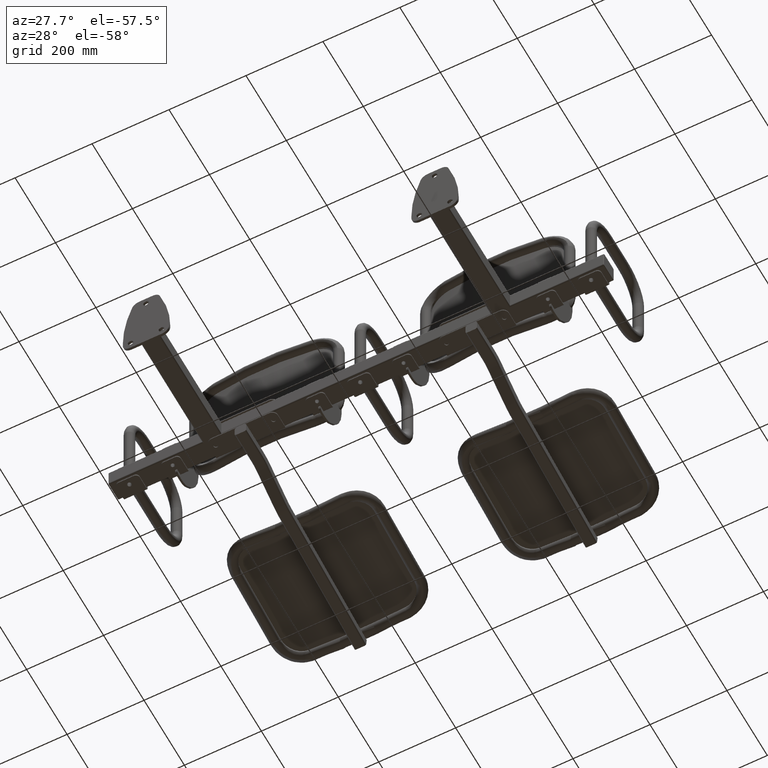
[diagram: clean part render]
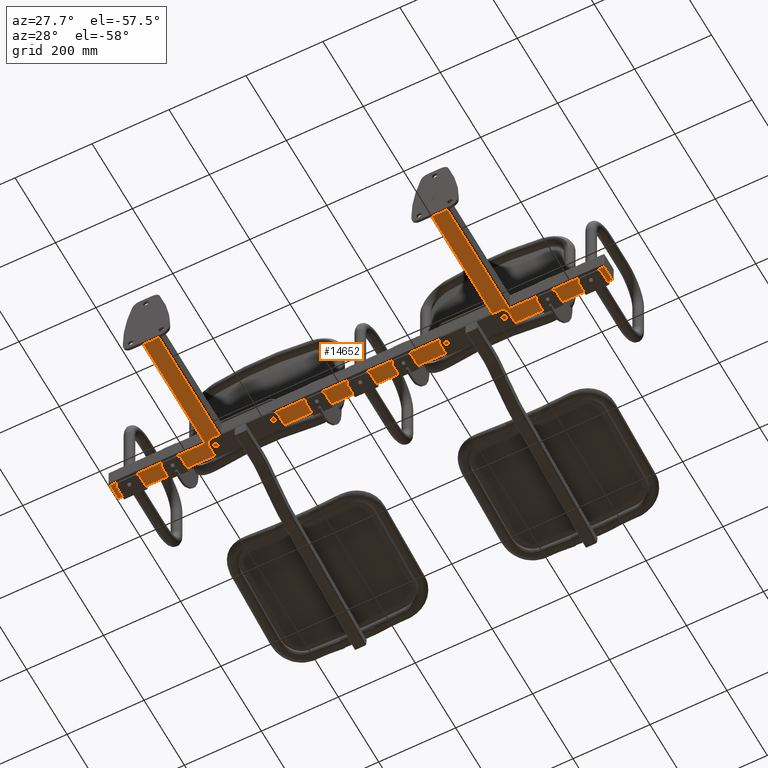
[diagram: same view with one face highlighted and labeled with its STEP entity id]
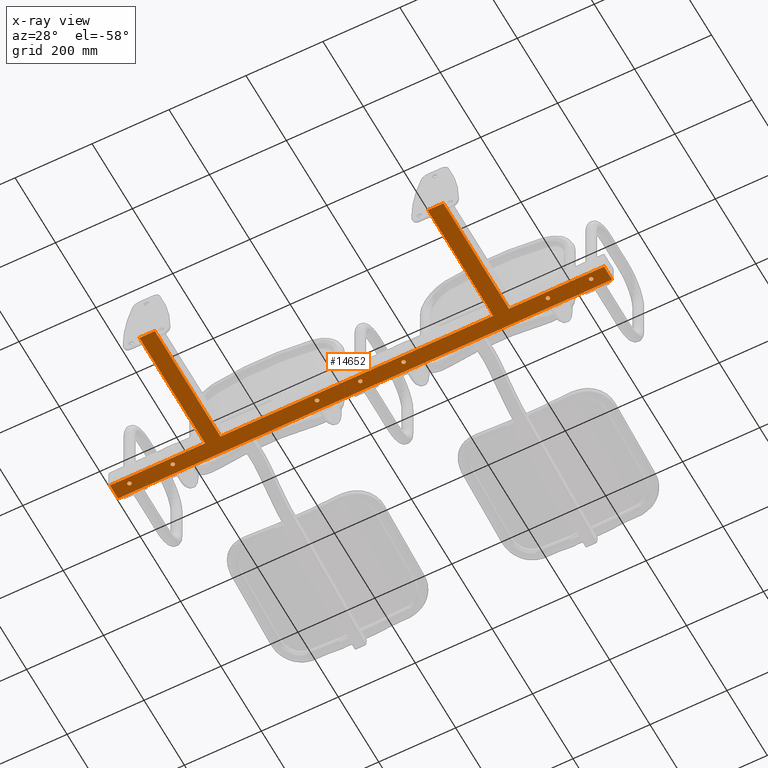
[diagram: x-ray of the same camera — body ghosted, the highlighted face saturated]
A machine part, auxiliary view. The second image highlights one B-rep face of the part: STEP entity #14652.
The next image is the same camera in x-ray: the body ghosted, the highlighted face saturated — about 0% of this face is hidden behind the body in this view.
In plain terms, the highlighted planar face has unit normal (0, 0, -1).
Its self-contained STEP definition (entity closure, byte-faithful):
#572 = CARTESIAN_POINT ( 'NONE',  ( -482.2500000000001700, 347.0000000000000000, -25.00000000000000000 ) ) ;
#574 = CARTESIAN_POINT ( 'NONE',  ( -594.7500000000000000, 347.0000000000000600, -25.00000000000000000 ) ) ;
#578 = CARTESIAN_POINT ( 'NONE',  ( -395.0000000000000600, 331.0000000000000000, -25.00000000000000000 ) ) ;
#581 = CARTESIAN_POINT ( 'NONE',  ( 642.0000000000000000, 371.0000000000000000, -25.00000000000000000 ) ) ;
#584 = CARTESIAN_POINT ( 'NONE',  ( 482.2500000000001700, 347.0000000000000000, -25.00000000000000000 ) ) ;
#588 = CARTESIAN_POINT ( 'NONE',  ( 107.2500000000001600, 347.0000000000000000, -25.00000000000000000 ) ) ;
#591 = CARTESIAN_POINT ( 'NONE',  ( -355.0000000000000000, 6.000000000000000000, -25.00000000000000000 ) ) ;
#592 = CARTESIAN_POINT ( 'NONE',  ( 395.0000000000000000, 6.000000000000000000, -25.00000000000000000 ) ) ;
#597 = CARTESIAN_POINT ( 'NONE',  ( -117.7500000000001600, 347.0000000000000000, -25.00000000000000000 ) ) ;
#600 = CARTESIAN_POINT ( 'NONE',  ( 642.0000000000001100, 331.0000000000000000, -25.00000000000000000 ) ) ;
#610 = CARTESIAN_POINT ( 'NONE',  ( -107.2500000000001600, 347.0000000000000000, -25.00000000000000000 ) ) ;
#617 = CARTESIAN_POINT ( 'NONE',  ( 395.0000000000000600, 331.0000000000000000, -25.00000000000000000 ) ) ;
#626 = CARTESIAN_POINT ( 'NONE',  ( -642.0000000000001100, 371.0000000000000000, -25.00000000000000000 ) ) ;
#631 = CARTESIAN_POINT ( 'NONE',  ( 117.7500000000001600, 347.0000000000000000, -25.00000000000000000 ) ) ;
#636 = CARTESIAN_POINT ( 'NONE',  ( 355.0000000000000000, 6.000000000000000000, -25.00000000000000000 ) ) ;
#638 = CARTESIAN_POINT ( 'NONE',  ( -492.7500000000001100, 347.0000000000000000, -25.00000000000000000 ) ) ;
#642 = CARTESIAN_POINT ( 'NONE',  ( 492.7500000000001100, 347.0000000000000000, -25.00000000000000000 ) ) ;
#647 = CARTESIAN_POINT ( 'NONE',  ( -395.0000000000000000, 6.000000000000000000, -25.00000000000000000 ) ) ;
#2231 = VERTEX_POINT ( 'NONE', #8940 ) ;
#2252 = VERTEX_POINT ( 'NONE', #8961 ) ;
#2265 = VERTEX_POINT ( 'NONE', #12576 ) ;
#3215 = AXIS2_PLACEMENT_3D ( 'NONE', #14291, #14292, #14293 ) ;
#3216 = AXIS2_PLACEMENT_3D ( 'NONE', #14294, #14295, #14296 ) ;
#3217 = AXIS2_PLACEMENT_3D ( 'NONE', #14299, #14300, #14301 ) ;
#3218 = AXIS2_PLACEMENT_3D ( 'NONE', #14304, #14305, #14306 ) ;
#3253 = EDGE_CURVE ( 'NONE', #3374, #16847, #4338, .T. ) ;
#3353 = VERTEX_POINT ( 'NONE', #16104 ) ;
#3374 = VERTEX_POINT ( 'NONE', #12045 ) ;
#3375 = VERTEX_POINT ( 'NONE', #12046 ) ;
#3378 = VERTEX_POINT ( 'NONE', #12049 ) ;
#4338 = CIRCLE ( 'NONE', #5139, 5.250000000000000900 ) ;
#4469 = CIRCLE ( 'NONE', #5179, 5.249999999999976900 ) ;
#4477 = CIRCLE ( 'NONE', #5181, 5.249999999999976900 ) ;
#4485 = CIRCLE ( 'NONE', #5183, 5.250000000000004400 ) ;
#4491 = CIRCLE ( 'NONE', #5185, 5.249999999999976900 ) ;
#4497 = CIRCLE ( 'NONE', #5187, 5.250000000000004400 ) ;
#4503 = CIRCLE ( 'NONE', #5189, 5.249999999999976900 ) ;
#4676 = ORIENTED_EDGE ( 'NONE', *, *, #17190, .T. ) ;
#4677 = ORIENTED_EDGE ( 'NONE', *, *, #3253, .T. ) ;
#4678 = ORIENTED_EDGE ( 'NONE', *, *, #17189, .T. ) ;
#4679 = ORIENTED_EDGE ( 'NONE', *, *, #4720, .T. ) ;
#4680 = ORIENTED_EDGE ( 'NONE', *, *, #17188, .T. ) ;
#4681 = ORIENTED_EDGE ( 'NONE', *, *, #4728, .T. ) ;
#4682 = ORIENTED_EDGE ( 'NONE', *, *, #17187, .T. ) ;
#4683 = ORIENTED_EDGE ( 'NONE', *, *, #4736, .T. ) ;
#4684 = ORIENTED_EDGE ( 'NONE', *, *, #17186, .T. ) ;
#4685 = ORIENTED_EDGE ( 'NONE', *, *, #17185, .T. ) ;
#4686 = ORIENTED_EDGE ( 'NONE', *, *, #17184, .T. ) ;
#4687 = ORIENTED_EDGE ( 'NONE', *, *, #16855, .F. ) ;
#4688 = ORIENTED_EDGE ( 'NONE', *, *, #9522, .T. ) ;
#4689 = ORIENTED_EDGE ( 'NONE', *, *, #9521, .T. ) ;
#4690 = ORIENTED_EDGE ( 'NONE', *, *, #9520, .T. ) ;
#4691 = ORIENTED_EDGE ( 'NONE', *, *, #9518, .F. ) ;
#4692 = ORIENTED_EDGE ( 'NONE', *, *, #9517, .T. ) ;
#4693 = ORIENTED_EDGE ( 'NONE', *, *, #9516, .T. ) ;
#4694 = ORIENTED_EDGE ( 'NONE', *, *, #9515, .T. ) ;
#4695 = ORIENTED_EDGE ( 'NONE', *, *, #9514, .T. ) ;
#4696 = ORIENTED_EDGE ( 'NONE', *, *, #9513, .T. ) ;
#4697 = ORIENTED_EDGE ( 'NONE', *, *, #4732, .T. ) ;
#4698 = ORIENTED_EDGE ( 'NONE', *, *, #9512, .T. ) ;
#4699 = ORIENTED_EDGE ( 'NONE', *, *, #4724, .T. ) ;
#4700 = ORIENTED_EDGE ( 'NONE', *, *, #9511, .T. ) ;
#4701 = ORIENTED_EDGE ( 'NONE', *, *, #4716, .T. ) ;
#4716 = EDGE_CURVE ( 'NONE', #3375, #3378, #4469, .T. ) ;
#4720 = EDGE_CURVE ( 'NONE', #3353, #12018, #4477, .T. ) ;
#4724 = EDGE_CURVE ( 'NONE', #12024, #13261, #4485, .T. ) ;
#4728 = EDGE_CURVE ( 'NONE', #12020, #13274, #4491, .T. ) ;
#4732 = EDGE_CURVE ( 'NONE', #12033, #13221, #4497, .T. ) ;
#4736 = EDGE_CURVE ( 'NONE', #13269, #12014, #4503, .T. ) ;
#5139 = AXIS2_PLACEMENT_3D ( 'NONE', #14739, #14740, #14741 ) ;
#5179 = AXIS2_PLACEMENT_3D ( 'NONE', #12070, #12071, #12072 ) ;
#5181 = AXIS2_PLACEMENT_3D ( 'NONE', #12080, #12081, #12082 ) ;
#5183 = AXIS2_PLACEMENT_3D ( 'NONE', #12090, #12091, #12092 ) ;
#5185 = AXIS2_PLACEMENT_3D ( 'NONE', #12100, #12101, #12102 ) ;
#5187 = AXIS2_PLACEMENT_3D ( 'NONE', #12110, #12111, #12112 ) ;
#5189 = AXIS2_PLACEMENT_3D ( 'NONE', #12122, #12123, #12124 ) ;
#5306 = AXIS2_PLACEMENT_3D ( 'NONE', #5562, #5564, #5566 ) ;
#5307 = AXIS2_PLACEMENT_3D ( 'NONE', #5572, #5574, #5576 ) ;
#5308 = AXIS2_PLACEMENT_3D ( 'NONE', #5582, #5584, #5586 ) ;
#5562 = CARTESIAN_POINT ( 'NONE',  ( 600.0000000000000000, 347.0000000000000600, -25.00000000000000000 ) ) ;
#5564 = DIRECTION ( 'NONE',  ( 0.0000000000000000000, 0.0000000000000000000, 1.000000000000000000 ) ) ;
#5566 = DIRECTION ( 'NONE',  ( -1.000000000000000000, 0.0000000000000000000, 0.0000000000000000000 ) ) ;
#5568 = CARTESIAN_POINT ( 'NONE',  ( 644.0000000000001100, 371.0000000000000000, -25.00000000000000000 ) ) ;
#5570 = DIRECTION ( 'NONE',  ( 1.000000000000000000, -0.0000000000000000000, -0.0000000000000000000 ) ) ;
#5572 = CARTESIAN_POINT ( 'NONE',  ( 112.5000000000001600, 347.0000000000000000, -25.00000000000000000 ) ) ;
#5574 = DIRECTION ( 'NONE',  ( 0.0000000000000000000, 0.0000000000000000000, 1.000000000000000000 ) ) ;
#5576 = DIRECTION ( 'NONE',  ( -1.000000000000000000, 0.0000000000000000000, 0.0000000000000000000 ) ) ;
#5578 = CARTESIAN_POINT ( 'NONE',  ( 354.9999999999999400, 326.0000000000000000, -25.00000000000000000 ) ) ;
#5580 = CARTESIAN_POINT ( 'NONE',  ( 642.0000000000001100, 331.0000000000000000, -25.00000000000000000 ) ) ;
#5582 = CARTESIAN_POINT ( 'NONE',  ( -112.5000000000001600, 347.0000000000000000, -25.00000000000000000 ) ) ;
#5584 = DIRECTION ( 'NONE',  ( 0.0000000000000000000, 0.0000000000000000000, 1.000000000000000000 ) ) ;
#5586 = DIRECTION ( 'NONE',  ( 1.000000000000000000, 0.0000000000000000000, 0.0000000000000000000 ) ) ;
#5589 = DIRECTION ( 'NONE',  ( 2.220446049250313500E-015, -1.000000000000000000, -0.0000000000000000000 ) ) ;
#5593 = CARTESIAN_POINT ( 'NONE',  ( 400.0000000000000600, 331.0000000000000000, -25.00000000000000000 ) ) ;
#5596 = DIRECTION ( 'NONE',  ( -1.000000000000000000, -0.0000000000000000000, -0.0000000000000000000 ) ) ;
#5598 = CARTESIAN_POINT ( 'NONE',  ( 395.0000000000000000, 6.000000000000000900, -25.00000000000000000 ) ) ;
#5601 = DIRECTION ( 'NONE',  ( -1.734723475976807100E-016, -1.000000000000000000, -0.0000000000000000000 ) ) ;
#5603 = CARTESIAN_POINT ( 'NONE',  ( 350.0000000000000000, 6.000000000000000000, -25.00000000000000000 ) ) ;
#5606 = DIRECTION ( 'NONE',  ( 1.000000000000000000, 0.0000000000000000000, 0.0000000000000000000 ) ) ;
#5608 = DIRECTION ( 'NONE',  ( -1.734723475976807100E-016, 1.000000000000000000, -0.0000000000000000000 ) ) ;
#5611 = CARTESIAN_POINT ( 'NONE',  ( -349.9999999999999400, 331.0000000000000000, -25.00000000000000000 ) ) ;
#5613 = DIRECTION ( 'NONE',  ( -1.000000000000000000, -0.0000000000000000000, -0.0000000000000000000 ) ) ;
#5615 = CARTESIAN_POINT ( 'NONE',  ( -355.0000000000000000, 6.000000000000000900, -25.00000000000000000 ) ) ;
#5618 = DIRECTION ( 'NONE',  ( -1.734723475976807100E-016, -1.000000000000000000, -0.0000000000000000000 ) ) ;
#8431 = LINE ( 'NONE', #17864, #8433 ) ;
#8433 = VECTOR ( 'NONE', #17863, 1000.000000000000000 ) ;
#8679 = LINE ( 'NONE', #14275, #8681 ) ;
#8680 = LINE ( 'NONE', #14287, #8683 ) ;
#8681 = VECTOR ( 'NONE', #14276, 1000.000000000000000 ) ;
#8682 = LINE ( 'NONE', #14289, #8685 ) ;
#8683 = VECTOR ( 'NONE', #14288, 1000.000000000000000 ) ;
#8684 = CIRCLE ( 'NONE', #3215, 5.249999999999976900 ) ;
#8685 = VECTOR ( 'NONE', #14290, 1000.000000000000000 ) ;
#8686 = CIRCLE ( 'NONE', #3216, 5.249999999999976900 ) ;
#8687 = CIRCLE ( 'NONE', #3217, 5.249999999999976900 ) ;
#8688 = CIRCLE ( 'NONE', #3218, 5.250000000000000900 ) ;
#8940 = CARTESIAN_POINT ( 'NONE',  ( 354.9999999999999400, 331.0000000000000000, -25.00000000000000000 ) ) ;
#8961 = CARTESIAN_POINT ( 'NONE',  ( -642.0000000000001100, 331.0000000000000000, -25.00000000000000000 ) ) ;
#9417 = AXIS2_PLACEMENT_3D ( 'NONE', #9901, #9897, #9903 ) ;
#9511 = EDGE_CURVE ( 'NONE', #3378, #3375, #13326, .T. ) ;
#9512 = EDGE_CURVE ( 'NONE', #13261, #12024, #13327, .T. ) ;
#9513 = EDGE_CURVE ( 'NONE', #13221, #12033, #13328, .T. ) ;
#9514 = EDGE_CURVE ( 'NONE', #13255, #12015, #13329, .T. ) ;
#9515 = EDGE_CURVE ( 'NONE', #12015, #12036, #13301, .T. ) ;
#9516 = EDGE_CURVE ( 'NONE', #12036, #13232, #13332, .T. ) ;
#9517 = EDGE_CURVE ( 'NONE', #13232, #12028, #13334, .T. ) ;
#9518 = EDGE_CURVE ( 'NONE', #13267, #12028, #13336, .T. ) ;
#9520 = EDGE_CURVE ( 'NONE', #13267, #2231, #13330, .T. ) ;
#9521 = EDGE_CURVE ( 'NONE', #2231, #2265, #13340, .T. ) ;
#9522 = EDGE_CURVE ( 'NONE', #2265, #12027, #13342, .T. ) ;
#9897 = DIRECTION ( 'NONE',  ( 0.0000000000000000000, 0.0000000000000000000, -1.000000000000000000 ) ) ;
#9901 = CARTESIAN_POINT ( 'NONE',  ( 0.0000000000000000000, 0.0000000000000000000, -25.00000000000000000 ) ) ;
#9902 = PLANE ( 'NONE',  #9417 ) ;
#9903 = DIRECTION ( 'NONE',  ( -1.000000000000000000, 0.0000000000000000000, -0.0000000000000000000 ) ) ;
#11864 = EDGE_LOOP ( 'NONE', ( #4701, #4700 ) ) ;
#11875 = EDGE_LOOP ( 'NONE', ( #4697, #4696 ) ) ;
#11878 = EDGE_LOOP ( 'NONE', ( #4699, #4698 ) ) ;
#11883 = EDGE_LOOP ( 'NONE', ( #4681, #4680 ) ) ;
#11907 = EDGE_LOOP ( 'NONE', ( #4695, #4694, #4693, #4692, #4691, #4690, #4689, #4688, #4687, #4686, #4685, #4684 ) ) ;
#11918 = EDGE_LOOP ( 'NONE', ( #4683, #4682 ) ) ;
#11924 = EDGE_LOOP ( 'NONE', ( #4677, #4676 ) ) ;
#11929 = EDGE_LOOP ( 'NONE', ( #4679, #4678 ) ) ;
#12011 = VERTEX_POINT ( 'NONE', #578 ) ;
#12014 = VERTEX_POINT ( 'NONE', #572 ) ;
#12015 = VERTEX_POINT ( 'NONE', #581 ) ;
#12018 = VERTEX_POINT ( 'NONE', #574 ) ;
#12020 = VERTEX_POINT ( 'NONE', #584 ) ;
#12024 = VERTEX_POINT ( 'NONE', #588 ) ;
#12027 = VERTEX_POINT ( 'NONE', #591 ) ;
#12028 = VERTEX_POINT ( 'NONE', #592 ) ;
#12033 = VERTEX_POINT ( 'NONE', #597 ) ;
#12036 = VERTEX_POINT ( 'NONE', #600 ) ;
#12045 = CARTESIAN_POINT ( 'NONE',  ( -5.250000000000000900, 347.0000000000000600, -25.00000000000000000 ) ) ;
#12046 = CARTESIAN_POINT ( 'NONE',  ( 594.7500000000000000, 347.0000000000000600, -25.00000000000000000 ) ) ;
#12049 = CARTESIAN_POINT ( 'NONE',  ( 605.2500000000000000, 347.0000000000000600, -25.00000000000000000 ) ) ;
#12070 = CARTESIAN_POINT ( 'NONE',  ( 600.0000000000000000, 347.0000000000000600, -25.00000000000000000 ) ) ;
#12071 = DIRECTION ( 'NONE',  ( 0.0000000000000000000, 0.0000000000000000000, 1.000000000000000000 ) ) ;
#12072 = DIRECTION ( 'NONE',  ( -1.000000000000000000, 0.0000000000000000000, 0.0000000000000000000 ) ) ;
#12080 = CARTESIAN_POINT ( 'NONE',  ( -600.0000000000000000, 347.0000000000000600, -25.00000000000000000 ) ) ;
#12081 = DIRECTION ( 'NONE',  ( 0.0000000000000000000, 0.0000000000000000000, 1.000000000000000000 ) ) ;
#12082 = DIRECTION ( 'NONE',  ( 1.000000000000000000, 0.0000000000000000000, 0.0000000000000000000 ) ) ;
#12090 = CARTESIAN_POINT ( 'NONE',  ( 112.5000000000001600, 347.0000000000000000, -25.00000000000000000 ) ) ;
#12091 = DIRECTION ( 'NONE',  ( 0.0000000000000000000, 0.0000000000000000000, 1.000000000000000000 ) ) ;
#12092 = DIRECTION ( 'NONE',  ( -1.000000000000000000, 0.0000000000000000000, 0.0000000000000000000 ) ) ;
#12100 = CARTESIAN_POINT ( 'NONE',  ( 487.5000000000001700, 347.0000000000000000, -25.00000000000000000 ) ) ;
#12101 = DIRECTION ( 'NONE',  ( 0.0000000000000000000, 0.0000000000000000000, 1.000000000000000000 ) ) ;
#12102 = DIRECTION ( 'NONE',  ( -1.000000000000000000, 0.0000000000000000000, 0.0000000000000000000 ) ) ;
#12110 = CARTESIAN_POINT ( 'NONE',  ( -112.5000000000001600, 347.0000000000000000, -25.00000000000000000 ) ) ;
#12111 = DIRECTION ( 'NONE',  ( 0.0000000000000000000, 0.0000000000000000000, 1.000000000000000000 ) ) ;
#12112 = DIRECTION ( 'NONE',  ( 1.000000000000000000, 0.0000000000000000000, 0.0000000000000000000 ) ) ;
#12122 = CARTESIAN_POINT ( 'NONE',  ( -487.5000000000001700, 347.0000000000000000, -25.00000000000000000 ) ) ;
#12123 = DIRECTION ( 'NONE',  ( 0.0000000000000000000, 0.0000000000000000000, 1.000000000000000000 ) ) ;
#12124 = DIRECTION ( 'NONE',  ( 1.000000000000000000, 0.0000000000000000000, 0.0000000000000000000 ) ) ;
#12576 = CARTESIAN_POINT ( 'NONE',  ( -354.9999999999999400, 331.0000000000000000, -25.00000000000000000 ) ) ;
#13221 = VERTEX_POINT ( 'NONE', #610 ) ;
#13232 = VERTEX_POINT ( 'NONE', #617 ) ;
#13255 = VERTEX_POINT ( 'NONE', #626 ) ;
#13261 = VERTEX_POINT ( 'NONE', #631 ) ;
#13267 = VERTEX_POINT ( 'NONE', #636 ) ;
#13269 = VERTEX_POINT ( 'NONE', #638 ) ;
#13274 = VERTEX_POINT ( 'NONE', #642 ) ;
#13279 = VERTEX_POINT ( 'NONE', #647 ) ;
#13301 = LINE ( 'NONE', #5580, #13333 ) ;
#13326 = CIRCLE ( 'NONE', #5306, 5.249999999999976900 ) ;
#13327 = CIRCLE ( 'NONE', #5307, 5.250000000000004400 ) ;
#13328 = CIRCLE ( 'NONE', #5308, 5.250000000000004400 ) ;
#13329 = LINE ( 'NONE', #5568, #13331 ) ;
#13330 = LINE ( 'NONE', #5578, #13341 ) ;
#13331 = VECTOR ( 'NONE', #5570, 1000.000000000000000 ) ;
#13332 = LINE ( 'NONE', #5593, #13335 ) ;
#13333 = VECTOR ( 'NONE', #5589, 1000.000000000000000 ) ;
#13334 = LINE ( 'NONE', #5598, #13337 ) ;
#13335 = VECTOR ( 'NONE', #5596, 1000.000000000000000 ) ;
#13336 = LINE ( 'NONE', #5603, #13339 ) ;
#13337 = VECTOR ( 'NONE', #5601, 1000.000000000000000 ) ;
#13339 = VECTOR ( 'NONE', #5606, 1000.000000000000000 ) ;
#13340 = LINE ( 'NONE', #5611, #13343 ) ;
#13341 = VECTOR ( 'NONE', #5608, 1000.000000000000000 ) ;
#13342 = LINE ( 'NONE', #5615, #13345 ) ;
#13343 = VECTOR ( 'NONE', #5613, 1000.000000000000000 ) ;
#13345 = VECTOR ( 'NONE', #5618, 1000.000000000000000 ) ;
#14275 = CARTESIAN_POINT ( 'NONE',  ( -395.0000000000000600, 326.0000000000000000, -25.00000000000000000 ) ) ;
#14276 = DIRECTION ( 'NONE',  ( -1.734723475976807100E-016, 1.000000000000000000, -0.0000000000000000000 ) ) ;
#14287 = CARTESIAN_POINT ( 'NONE',  ( -644.0000000000001100, 331.0000000000000000, -25.00000000000000000 ) ) ;
#14288 = DIRECTION ( 'NONE',  ( -1.000000000000000000, -0.0000000000000000000, -0.0000000000000000000 ) ) ;
#14289 = CARTESIAN_POINT ( 'NONE',  ( -642.0000000000001100, 371.0000000000000000, -25.00000000000000000 ) ) ;
#14290 = DIRECTION ( 'NONE',  ( -0.0000000000000000000, 1.000000000000000000, -0.0000000000000000000 ) ) ;
#14291 = CARTESIAN_POINT ( 'NONE',  ( -487.5000000000001700, 347.0000000000000000, -25.00000000000000000 ) ) ;
#14292 = DIRECTION ( 'NONE',  ( 0.0000000000000000000, 0.0000000000000000000, 1.000000000000000000 ) ) ;
#14293 = DIRECTION ( 'NONE',  ( 1.000000000000000000, 0.0000000000000000000, 0.0000000000000000000 ) ) ;
#14294 = CARTESIAN_POINT ( 'NONE',  ( 487.5000000000001700, 347.0000000000000000, -25.00000000000000000 ) ) ;
#14295 = DIRECTION ( 'NONE',  ( 0.0000000000000000000, 0.0000000000000000000, 1.000000000000000000 ) ) ;
#14296 = DIRECTION ( 'NONE',  ( -1.000000000000000000, 0.0000000000000000000, 0.0000000000000000000 ) ) ;
#14299 = CARTESIAN_POINT ( 'NONE',  ( -600.0000000000000000, 347.0000000000000600, -25.00000000000000000 ) ) ;
#14300 = DIRECTION ( 'NONE',  ( 0.0000000000000000000, 0.0000000000000000000, 1.000000000000000000 ) ) ;
#14301 = DIRECTION ( 'NONE',  ( 1.000000000000000000, 0.0000000000000000000, 0.0000000000000000000 ) ) ;
#14304 = CARTESIAN_POINT ( 'NONE',  ( 0.0000000000000000000, 347.0000000000000600, -25.00000000000000000 ) ) ;
#14305 = DIRECTION ( 'NONE',  ( 0.0000000000000000000, 0.0000000000000000000, 1.000000000000000000 ) ) ;
#14306 = DIRECTION ( 'NONE',  ( 1.000000000000000000, 0.0000000000000000000, 0.0000000000000000000 ) ) ;
#14652 = ADVANCED_FACE ( 'NONE', ( #16977, #16979, #16930, #16978, #16967, #16980, #16981, #16982 ), #9902, .T. ) ;
#14739 = CARTESIAN_POINT ( 'NONE',  ( 0.0000000000000000000, 347.0000000000000600, -25.00000000000000000 ) ) ;
#14740 = DIRECTION ( 'NONE',  ( 0.0000000000000000000, 0.0000000000000000000, 1.000000000000000000 ) ) ;
#14741 = DIRECTION ( 'NONE',  ( 1.000000000000000000, 0.0000000000000000000, 0.0000000000000000000 ) ) ;
#16104 = CARTESIAN_POINT ( 'NONE',  ( -605.2500000000000000, 347.0000000000000600, -25.00000000000000000 ) ) ;
#16847 = VERTEX_POINT ( 'NONE', #17847 ) ;
#16855 = EDGE_CURVE ( 'NONE', #13279, #12027, #8431, .T. ) ;
#16930 = FACE_BOUND ( 'NONE', #11875, .T. ) ;
#16967 = FACE_BOUND ( 'NONE', #11918, .T. ) ;
#16977 = FACE_BOUND ( 'NONE', #11864, .T. ) ;
#16978 = FACE_OUTER_BOUND ( 'NONE', #11907, .T. ) ;
#16979 = FACE_BOUND ( 'NONE', #11878, .T. ) ;
#16980 = FACE_BOUND ( 'NONE', #11883, .T. ) ;
#16981 = FACE_BOUND ( 'NONE', #11929, .T. ) ;
#16982 = FACE_BOUND ( 'NONE', #11924, .T. ) ;
#17184 = EDGE_CURVE ( 'NONE', #13279, #12011, #8679, .T. ) ;
#17185 = EDGE_CURVE ( 'NONE', #12011, #2252, #8680, .T. ) ;
#17186 = EDGE_CURVE ( 'NONE', #2252, #13255, #8682, .T. ) ;
#17187 = EDGE_CURVE ( 'NONE', #12014, #13269, #8684, .T. ) ;
#17188 = EDGE_CURVE ( 'NONE', #13274, #12020, #8686, .T. ) ;
#17189 = EDGE_CURVE ( 'NONE', #12018, #3353, #8687, .T. ) ;
#17190 = EDGE_CURVE ( 'NONE', #16847, #3374, #8688, .T. ) ;
#17847 = CARTESIAN_POINT ( 'NONE',  ( 5.250000000000000900, 347.0000000000000600, -25.00000000000000000 ) ) ;
#17863 = DIRECTION ( 'NONE',  ( 1.000000000000000000, 0.0000000000000000000, 0.0000000000000000000 ) ) ;
#17864 = CARTESIAN_POINT ( 'NONE',  ( -400.0000000000000000, 6.000000000000000000, -25.00000000000000000 ) ) ;